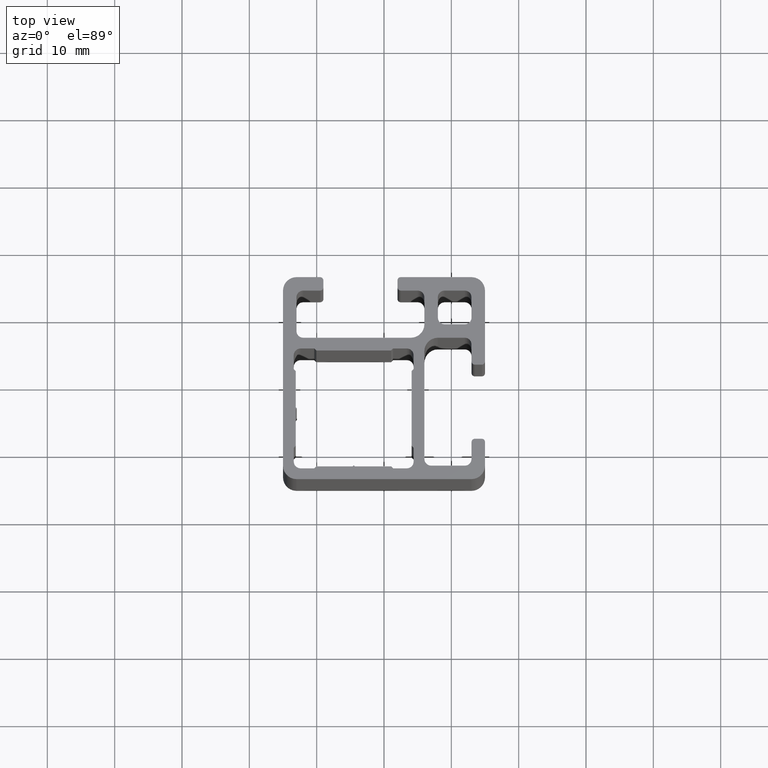
[diagram: clean part render]
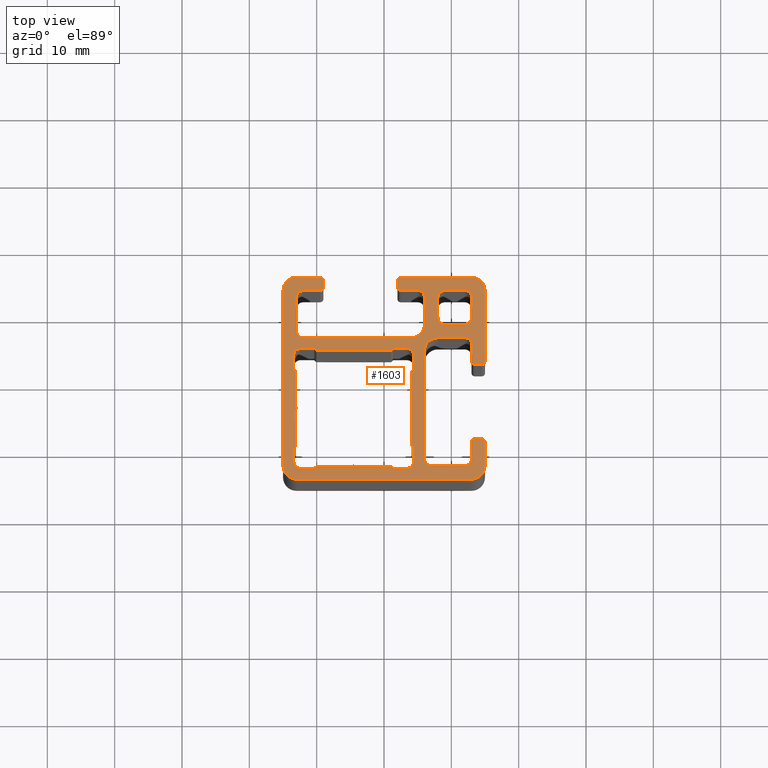
[diagram: same view with one face highlighted and labeled with its STEP entity id]
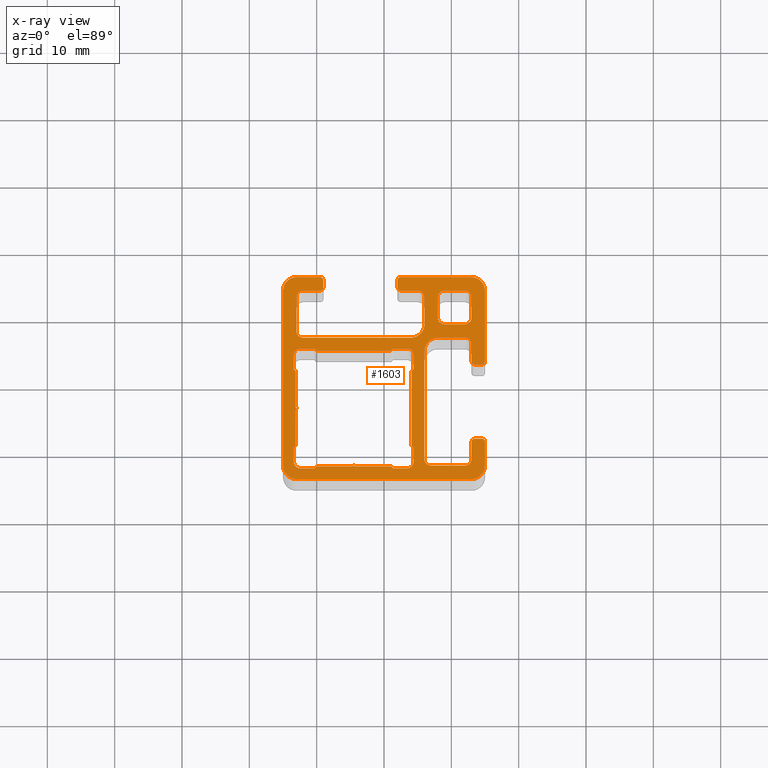
[diagram: x-ray of the same camera — body ghosted, the highlighted face saturated]
A machine part, top view. The second image highlights one B-rep face of the part: STEP entity #1603.
The next image is the same camera in x-ray: the body ghosted, the highlighted face saturated — about 0% of this face is hidden behind the body in this view.
In plain terms, the highlighted planar face has unit normal (0, 0, 1).
Its self-contained STEP definition (entity closure, byte-faithful):
#15=FACE_BOUND('',#222,.T.);
#16=FACE_BOUND('',#223,.T.);
#65=PLANE('',#1733);
#141=FACE_OUTER_BOUND('',#221,.T.);
#221=EDGE_LOOP('',(#1317,#1318,#1319,#1320,#1321,#1322,#1323,#1324,#1325,
#1326,#1327,#1328,#1329,#1330,#1331,#1332,#1333,#1334,#1335,#1336,#1337,
#1338,#1339,#1340,#1341,#1342,#1343,#1344,#1345,#1346,#1347,#1348,#1349,
#1350,#1351,#1352,#1353,#1354,#1355,#1356));
#222=EDGE_LOOP('',(#1357,#1358,#1359,#1360,#1361,#1362,#1363,#1364,#1365,
#1366,#1367,#1368,#1369,#1370,#1371,#1372,#1373,#1374,#1375,#1376,#1377,
#1378,#1379,#1380,#1381,#1382,#1383,#1384,#1385,#1386));
#223=EDGE_LOOP('',(#1387,#1388,#1389,#1390,#1391,#1392,#1393,#1394));
#237=LINE('',#2215,#415);
#241=LINE('',#2227,#419);
#245=LINE('',#2239,#423);
#249=LINE('',#2250,#427);
#251=LINE('',#2255,#429);
#255=LINE('',#2263,#433);
#258=LINE('',#2269,#436);
#261=LINE('',#2275,#439);
#264=LINE('',#2281,#442);
#267=LINE('',#2287,#445);
#271=LINE('',#2299,#449);
#274=LINE('',#2305,#452);
#277=LINE('',#2311,#455);
#280=LINE('',#2317,#458);
#283=LINE('',#2323,#461);
#286=LINE('',#2329,#464);
#289=LINE('',#2335,#467);
#292=LINE('',#2341,#470);
#296=LINE('',#2353,#474);
#299=LINE('',#2359,#477);
#302=LINE('',#2365,#480);
#305=LINE('',#2371,#483);
#308=LINE('',#2377,#486);
#312=LINE('',#2389,#490);
#315=LINE('',#2395,#493);
#318=LINE('',#2401,#496);
#321=LINE('',#2407,#499);
#324=LINE('',#2413,#502);
#328=LINE('',#2425,#506);
#331=LINE('',#2430,#509);
#335=LINE('',#2443,#513);
#339=LINE('',#2455,#517);
#343=LINE('',#2467,#521);
#349=LINE('',#2488,#527);
#353=LINE('',#2500,#531);
#357=LINE('',#2512,#535);
#361=LINE('',#2523,#539);
#363=LINE('',#2528,#541);
#368=LINE('',#2542,#546);
#372=LINE('',#2554,#550);
#376=LINE('',#2566,#554);
#382=LINE('',#2587,#560);
#386=LINE('',#2599,#564);
#390=LINE('',#2611,#568);
#395=LINE('',#2623,#573);
#396=LINE('',#2626,#574);
#399=LINE('',#2633,#577);
#400=LINE('',#2637,#578);
#401=LINE('',#2641,#579);
#402=LINE('',#2644,#580);
#415=VECTOR('',#1763,3.);
#419=VECTOR('',#1775,3.);
#423=VECTOR('',#1787,2.99999999999999);
#427=VECTOR('',#1799,3.);
#429=VECTOR('',#1803,5.39999999999999);
#433=VECTOR('',#1809,0.212132034355957);
#436=VECTOR('',#1814,0.212132034355964);
#439=VECTOR('',#1819,5.40000000000011);
#442=VECTOR('',#1824,0.424264068711855);
#445=VECTOR('',#1829,2.05);
#449=VECTOR('',#1841,2.05);
#452=VECTOR('',#1846,0.42426406871195);
#455=VECTOR('',#1851,5.39999999999999);
#458=VECTOR('',#1856,0.212132034355964);
#461=VECTOR('',#1861,0.212132034355955);
#464=VECTOR('',#1866,5.39999999999998);
#467=VECTOR('',#1871,0.424264068711968);
#470=VECTOR('',#1876,2.05000000000003);
#474=VECTOR('',#1888,2.05);
#477=VECTOR('',#1893,0.424264068711934);
#480=VECTOR('',#1898,11.1);
#483=VECTOR('',#1903,0.424264068711929);
#486=VECTOR('',#1908,2.05);
#490=VECTOR('',#1920,2.05000000000005);
#493=VECTOR('',#1925,0.424264068711922);
#496=VECTOR('',#1930,11.1);
#499=VECTOR('',#1935,0.4242640687119);
#502=VECTOR('',#1940,2.05000000000002);
#506=VECTOR('',#1952,2.04999999999999);
#509=VECTOR('',#1957,0.424264068711928);
#513=VECTOR('',#1969,4.);
#517=VECTOR('',#1981,2.5);
#521=VECTOR('',#1993,1.);
#527=VECTOR('',#2013,0.999999999999999);
#531=VECTOR('',#2025,2.5);
#535=VECTOR('',#2037,5.);
#539=VECTOR('',#2049,16.);
#541=VECTOR('',#2053,16.);
#546=VECTOR('',#2066,4.);
#550=VECTOR('',#2078,2.5);
#554=VECTOR('',#2090,0.999999999999999);
#560=VECTOR('',#2110,0.999999999999999);
#564=VECTOR('',#2122,2.5);
#568=VECTOR('',#2134,5.);
#573=VECTOR('',#2147,10.4999999868977);
#574=VECTOR('',#2150,10.4999999917376);
#577=VECTOR('',#2157,3.49999999152327);
#578=VECTOR('',#2160,25.9999999741351);
#579=VECTOR('',#2163,25.9999999830465);
#580=VECTOR('',#2166,3.49999998706757);
#591=CIRCLE('',#1616,1.);
#593=CIRCLE('',#1620,1.);
#595=CIRCLE('',#1624,1.);
#597=CIRCLE('',#1628,1.);
#599=CIRCLE('',#1638,1.);
#601=CIRCLE('',#1649,1.);
#603=CIRCLE('',#1657,1.);
#605=CIRCLE('',#1665,1.);
#607=CIRCLE('',#1670,2.);
#609=CIRCLE('',#1674,1.);
#611=CIRCLE('',#1678,0.5);
#613=CIRCLE('',#1682,0.5);
#615=CIRCLE('',#1685,0.5);
#617=CIRCLE('',#1689,0.5);
#619=CIRCLE('',#1693,1.);
#621=CIRCLE('',#1697,1.);
#623=CIRCLE('',#1702,2.);
#625=CIRCLE('',#1706,1.);
#627=CIRCLE('',#1710,0.5);
#629=CIRCLE('',#1714,0.5);
#631=CIRCLE('',#1717,0.5);
#633=CIRCLE('',#1721,0.5);
#635=CIRCLE('',#1725,1.);
#637=CIRCLE('',#1729,1.);
#639=CIRCLE('',#1734,2.00000000847673);
#640=CIRCLE('',#1735,2.00000000847673);
#641=CIRCLE('',#1736,2.00000000847673);
#642=CIRCLE('',#1737,2.00000000847673);
#647=VERTEX_POINT('',#2205);
#648=VERTEX_POINT('',#2206);
#651=VERTEX_POINT('',#2214);
#653=VERTEX_POINT('',#2220);
#655=VERTEX_POINT('',#2226);
#657=VERTEX_POINT('',#2232);
#659=VERTEX_POINT('',#2238);
#661=VERTEX_POINT('',#2244);
#663=VERTEX_POINT('',#2253);
#664=VERTEX_POINT('',#2254);
#667=VERTEX_POINT('',#2262);
#669=VERTEX_POINT('',#2268);
#671=VERTEX_POINT('',#2274);
#673=VERTEX_POINT('',#2280);
#675=VERTEX_POINT('',#2286);
#677=VERTEX_POINT('',#2292);
#679=VERTEX_POINT('',#2298);
#681=VERTEX_POINT('',#2304);
#683=VERTEX_POINT('',#2310);
#685=VERTEX_POINT('',#2316);
#687=VERTEX_POINT('',#2322);
#689=VERTEX_POINT('',#2328);
#691=VERTEX_POINT('',#2334);
#693=VERTEX_POINT('',#2340);
#695=VERTEX_POINT('',#2346);
#697=VERTEX_POINT('',#2352);
#699=VERTEX_POINT('',#2358);
#701=VERTEX_POINT('',#2364);
#703=VERTEX_POINT('',#2370);
#705=VERTEX_POINT('',#2376);
#707=VERTEX_POINT('',#2382);
#709=VERTEX_POINT('',#2388);
#711=VERTEX_POINT('',#2394);
#713=VERTEX_POINT('',#2400);
#715=VERTEX_POINT('',#2406);
#717=VERTEX_POINT('',#2412);
#719=VERTEX_POINT('',#2418);
#721=VERTEX_POINT('',#2424);
#723=VERTEX_POINT('',#2433);
#724=VERTEX_POINT('',#2434);
#727=VERTEX_POINT('',#2442);
#729=VERTEX_POINT('',#2448);
#731=VERTEX_POINT('',#2454);
#733=VERTEX_POINT('',#2460);
#735=VERTEX_POINT('',#2466);
#737=VERTEX_POINT('',#2472);
#739=VERTEX_POINT('',#2478);
#740=VERTEX_POINT('',#2479);
#743=VERTEX_POINT('',#2487);
#745=VERTEX_POINT('',#2493);
#747=VERTEX_POINT('',#2499);
#749=VERTEX_POINT('',#2505);
#751=VERTEX_POINT('',#2511);
#753=VERTEX_POINT('',#2517);
#755=VERTEX_POINT('',#2526);
#756=VERTEX_POINT('',#2527);
#759=VERTEX_POINT('',#2535);
#761=VERTEX_POINT('',#2541);
#763=VERTEX_POINT('',#2547);
#765=VERTEX_POINT('',#2553);
#767=VERTEX_POINT('',#2559);
#769=VERTEX_POINT('',#2565);
#771=VERTEX_POINT('',#2571);
#773=VERTEX_POINT('',#2577);
#774=VERTEX_POINT('',#2578);
#777=VERTEX_POINT('',#2586);
#779=VERTEX_POINT('',#2592);
#781=VERTEX_POINT('',#2598);
#783=VERTEX_POINT('',#2604);
#785=VERTEX_POINT('',#2610);
#788=VERTEX_POINT('',#2621);
#789=VERTEX_POINT('',#2625);
#791=VERTEX_POINT('',#2632);
#792=VERTEX_POINT('',#2634);
#793=VERTEX_POINT('',#2636);
#794=VERTEX_POINT('',#2638);
#795=VERTEX_POINT('',#2640);
#796=VERTEX_POINT('',#2642);
#803=EDGE_CURVE('',#647,#648,#591,.T.);
#807=EDGE_CURVE('',#648,#651,#237,.T.);
#810=EDGE_CURVE('',#651,#653,#593,.T.);
#813=EDGE_CURVE('',#653,#655,#241,.T.);
#816=EDGE_CURVE('',#655,#657,#595,.T.);
#819=EDGE_CURVE('',#657,#659,#245,.T.);
#822=EDGE_CURVE('',#659,#661,#597,.T.);
#825=EDGE_CURVE('',#661,#647,#249,.T.);
#827=EDGE_CURVE('',#663,#664,#251,.T.);
#831=EDGE_CURVE('',#667,#663,#255,.T.);
#834=EDGE_CURVE('',#669,#667,#258,.T.);
#837=EDGE_CURVE('',#671,#669,#261,.T.);
#840=EDGE_CURVE('',#673,#671,#264,.T.);
#843=EDGE_CURVE('',#675,#673,#267,.T.);
#846=EDGE_CURVE('',#677,#675,#599,.T.);
#849=EDGE_CURVE('',#679,#677,#271,.T.);
#852=EDGE_CURVE('',#681,#679,#274,.T.);
#855=EDGE_CURVE('',#683,#681,#277,.T.);
#858=EDGE_CURVE('',#685,#683,#280,.T.);
#861=EDGE_CURVE('',#687,#685,#283,.T.);
#864=EDGE_CURVE('',#689,#687,#286,.T.);
#867=EDGE_CURVE('',#691,#689,#289,.T.);
#870=EDGE_CURVE('',#693,#691,#292,.T.);
#873=EDGE_CURVE('',#695,#693,#601,.T.);
#876=EDGE_CURVE('',#697,#695,#296,.T.);
#879=EDGE_CURVE('',#699,#697,#299,.T.);
#882=EDGE_CURVE('',#701,#699,#302,.T.);
#885=EDGE_CURVE('',#703,#701,#305,.T.);
#888=EDGE_CURVE('',#705,#703,#308,.T.);
#891=EDGE_CURVE('',#707,#705,#603,.T.);
#894=EDGE_CURVE('',#709,#707,#312,.T.);
#897=EDGE_CURVE('',#711,#709,#315,.T.);
#900=EDGE_CURVE('',#713,#711,#318,.T.);
#903=EDGE_CURVE('',#715,#713,#321,.T.);
#906=EDGE_CURVE('',#717,#715,#324,.T.);
#909=EDGE_CURVE('',#719,#717,#605,.T.);
#912=EDGE_CURVE('',#721,#719,#328,.T.);
#915=EDGE_CURVE('',#664,#721,#331,.T.);
#917=EDGE_CURVE('',#723,#724,#607,.T.);
#921=EDGE_CURVE('',#724,#727,#335,.T.);
#924=EDGE_CURVE('',#727,#729,#609,.T.);
#927=EDGE_CURVE('',#729,#731,#339,.T.);
#930=EDGE_CURVE('',#731,#733,#611,.T.);
#933=EDGE_CURVE('',#733,#735,#343,.T.);
#936=EDGE_CURVE('',#735,#737,#613,.T.);
#939=EDGE_CURVE('',#739,#740,#615,.T.);
#943=EDGE_CURVE('',#740,#743,#349,.T.);
#946=EDGE_CURVE('',#743,#745,#617,.T.);
#949=EDGE_CURVE('',#745,#747,#353,.T.);
#952=EDGE_CURVE('',#747,#749,#619,.T.);
#955=EDGE_CURVE('',#749,#751,#357,.T.);
#958=EDGE_CURVE('',#751,#753,#621,.T.);
#961=EDGE_CURVE('',#753,#723,#361,.T.);
#963=EDGE_CURVE('',#755,#756,#363,.T.);
#967=EDGE_CURVE('',#759,#755,#623,.T.);
#970=EDGE_CURVE('',#761,#759,#368,.T.);
#973=EDGE_CURVE('',#763,#761,#625,.T.);
#976=EDGE_CURVE('',#765,#763,#372,.T.);
#979=EDGE_CURVE('',#767,#765,#627,.T.);
#982=EDGE_CURVE('',#769,#767,#376,.T.);
#985=EDGE_CURVE('',#771,#769,#629,.T.);
#988=EDGE_CURVE('',#773,#774,#631,.T.);
#992=EDGE_CURVE('',#777,#773,#382,.T.);
#995=EDGE_CURVE('',#779,#777,#633,.T.);
#998=EDGE_CURVE('',#781,#779,#386,.T.);
#1001=EDGE_CURVE('',#783,#781,#635,.T.);
#1004=EDGE_CURVE('',#785,#783,#390,.T.);
#1007=EDGE_CURVE('',#756,#785,#637,.T.);
#1011=EDGE_CURVE('',#788,#737,#395,.T.);
#1012=EDGE_CURVE('',#771,#789,#396,.T.);
#1015=EDGE_CURVE('',#789,#788,#639,.T.);
#1016=EDGE_CURVE('',#791,#774,#399,.T.);
#1017=EDGE_CURVE('',#792,#791,#640,.T.);
#1018=EDGE_CURVE('',#793,#792,#400,.T.);
#1019=EDGE_CURVE('',#794,#793,#641,.T.);
#1020=EDGE_CURVE('',#795,#794,#401,.T.);
#1021=EDGE_CURVE('',#796,#795,#642,.T.);
#1022=EDGE_CURVE('',#739,#796,#402,.T.);
#1317=ORIENTED_EDGE('',*,*,#939,.T.);
#1318=ORIENTED_EDGE('',*,*,#943,.T.);
#1319=ORIENTED_EDGE('',*,*,#946,.T.);
#1320=ORIENTED_EDGE('',*,*,#949,.T.);
#1321=ORIENTED_EDGE('',*,*,#952,.T.);
#1322=ORIENTED_EDGE('',*,*,#955,.T.);
#1323=ORIENTED_EDGE('',*,*,#958,.T.);
#1324=ORIENTED_EDGE('',*,*,#961,.T.);
#1325=ORIENTED_EDGE('',*,*,#917,.T.);
#1326=ORIENTED_EDGE('',*,*,#921,.T.);
#1327=ORIENTED_EDGE('',*,*,#924,.T.);
#1328=ORIENTED_EDGE('',*,*,#927,.T.);
#1329=ORIENTED_EDGE('',*,*,#930,.T.);
#1330=ORIENTED_EDGE('',*,*,#933,.T.);
#1331=ORIENTED_EDGE('',*,*,#936,.T.);
#1332=ORIENTED_EDGE('',*,*,#1011,.F.);
#1333=ORIENTED_EDGE('',*,*,#1015,.F.);
#1334=ORIENTED_EDGE('',*,*,#1012,.F.);
#1335=ORIENTED_EDGE('',*,*,#985,.T.);
#1336=ORIENTED_EDGE('',*,*,#982,.T.);
#1337=ORIENTED_EDGE('',*,*,#979,.T.);
#1338=ORIENTED_EDGE('',*,*,#976,.T.);
#1339=ORIENTED_EDGE('',*,*,#973,.T.);
#1340=ORIENTED_EDGE('',*,*,#970,.T.);
#1341=ORIENTED_EDGE('',*,*,#967,.T.);
#1342=ORIENTED_EDGE('',*,*,#963,.T.);
#1343=ORIENTED_EDGE('',*,*,#1007,.T.);
#1344=ORIENTED_EDGE('',*,*,#1004,.T.);
#1345=ORIENTED_EDGE('',*,*,#1001,.T.);
#1346=ORIENTED_EDGE('',*,*,#998,.T.);
#1347=ORIENTED_EDGE('',*,*,#995,.T.);
#1348=ORIENTED_EDGE('',*,*,#992,.T.);
#1349=ORIENTED_EDGE('',*,*,#988,.T.);
#1350=ORIENTED_EDGE('',*,*,#1016,.F.);
#1351=ORIENTED_EDGE('',*,*,#1017,.F.);
#1352=ORIENTED_EDGE('',*,*,#1018,.F.);
#1353=ORIENTED_EDGE('',*,*,#1019,.F.);
#1354=ORIENTED_EDGE('',*,*,#1020,.F.);
#1355=ORIENTED_EDGE('',*,*,#1021,.F.);
#1356=ORIENTED_EDGE('',*,*,#1022,.F.);
#1357=ORIENTED_EDGE('',*,*,#827,.T.);
#1358=ORIENTED_EDGE('',*,*,#915,.T.);
#1359=ORIENTED_EDGE('',*,*,#912,.T.);
#1360=ORIENTED_EDGE('',*,*,#909,.T.);
#1361=ORIENTED_EDGE('',*,*,#906,.T.);
#1362=ORIENTED_EDGE('',*,*,#903,.T.);
#1363=ORIENTED_EDGE('',*,*,#900,.T.);
#1364=ORIENTED_EDGE('',*,*,#897,.T.);
#1365=ORIENTED_EDGE('',*,*,#894,.T.);
#1366=ORIENTED_EDGE('',*,*,#891,.T.);
#1367=ORIENTED_EDGE('',*,*,#888,.T.);
#1368=ORIENTED_EDGE('',*,*,#885,.T.);
#1369=ORIENTED_EDGE('',*,*,#882,.T.);
#1370=ORIENTED_EDGE('',*,*,#879,.T.);
#1371=ORIENTED_EDGE('',*,*,#876,.T.);
#1372=ORIENTED_EDGE('',*,*,#873,.T.);
#1373=ORIENTED_EDGE('',*,*,#870,.T.);
#1374=ORIENTED_EDGE('',*,*,#867,.T.);
#1375=ORIENTED_EDGE('',*,*,#864,.T.);
#1376=ORIENTED_EDGE('',*,*,#861,.T.);
#1377=ORIENTED_EDGE('',*,*,#858,.T.);
#1378=ORIENTED_EDGE('',*,*,#855,.T.);
#1379=ORIENTED_EDGE('',*,*,#852,.T.);
#1380=ORIENTED_EDGE('',*,*,#849,.T.);
#1381=ORIENTED_EDGE('',*,*,#846,.T.);
#1382=ORIENTED_EDGE('',*,*,#843,.T.);
#1383=ORIENTED_EDGE('',*,*,#840,.T.);
#1384=ORIENTED_EDGE('',*,*,#837,.T.);
#1385=ORIENTED_EDGE('',*,*,#834,.T.);
#1386=ORIENTED_EDGE('',*,*,#831,.T.);
#1387=ORIENTED_EDGE('',*,*,#803,.T.);
#1388=ORIENTED_EDGE('',*,*,#807,.T.);
#1389=ORIENTED_EDGE('',*,*,#810,.T.);
#1390=ORIENTED_EDGE('',*,*,#813,.T.);
#1391=ORIENTED_EDGE('',*,*,#816,.T.);
#1392=ORIENTED_EDGE('',*,*,#819,.T.);
#1393=ORIENTED_EDGE('',*,*,#822,.T.);
#1394=ORIENTED_EDGE('',*,*,#825,.T.);
#1603=ADVANCED_FACE('',(#141,#15,#16),#65,.T.);
#1616=AXIS2_PLACEMENT_3D('',#2207,#1755,#1756);
#1620=AXIS2_PLACEMENT_3D('',#2221,#1768,#1769);
#1624=AXIS2_PLACEMENT_3D('',#2233,#1780,#1781);
#1628=AXIS2_PLACEMENT_3D('',#2245,#1792,#1793);
#1638=AXIS2_PLACEMENT_3D('',#2293,#1834,#1835);
#1649=AXIS2_PLACEMENT_3D('',#2347,#1881,#1882);
#1657=AXIS2_PLACEMENT_3D('',#2383,#1913,#1914);
#1665=AXIS2_PLACEMENT_3D('',#2419,#1945,#1946);
#1670=AXIS2_PLACEMENT_3D('',#2435,#1961,#1962);
#1674=AXIS2_PLACEMENT_3D('',#2449,#1974,#1975);
#1678=AXIS2_PLACEMENT_3D('',#2461,#1986,#1987);
#1682=AXIS2_PLACEMENT_3D('',#2473,#1998,#1999);
#1685=AXIS2_PLACEMENT_3D('',#2480,#2005,#2006);
#1689=AXIS2_PLACEMENT_3D('',#2494,#2018,#2019);
#1693=AXIS2_PLACEMENT_3D('',#2506,#2030,#2031);
#1697=AXIS2_PLACEMENT_3D('',#2518,#2042,#2043);
#1702=AXIS2_PLACEMENT_3D('',#2536,#2059,#2060);
#1706=AXIS2_PLACEMENT_3D('',#2548,#2071,#2072);
#1710=AXIS2_PLACEMENT_3D('',#2560,#2083,#2084);
#1714=AXIS2_PLACEMENT_3D('',#2572,#2095,#2096);
#1717=AXIS2_PLACEMENT_3D('',#2579,#2102,#2103);
#1721=AXIS2_PLACEMENT_3D('',#2593,#2115,#2116);
#1725=AXIS2_PLACEMENT_3D('',#2605,#2127,#2128);
#1729=AXIS2_PLACEMENT_3D('',#2616,#2139,#2140);
#1733=AXIS2_PLACEMENT_3D('',#2630,#2153,#2154);
#1734=AXIS2_PLACEMENT_3D('',#2631,#2155,#2156);
#1735=AXIS2_PLACEMENT_3D('',#2635,#2158,#2159);
#1736=AXIS2_PLACEMENT_3D('',#2639,#2161,#2162);
#1737=AXIS2_PLACEMENT_3D('',#2643,#2164,#2165);
#1755=DIRECTION('center_axis',(0.,0.,-1.));
#1756=DIRECTION('ref_axis',(0.,1.,0.));
#1763=DIRECTION('',(-1.,-3.70074341541719E-16,0.));
#1768=DIRECTION('center_axis',(0.,0.,-1.));
#1769=DIRECTION('ref_axis',(1.,0.,0.));
#1775=DIRECTION('',(3.70074341541719E-16,1.,0.));
#1780=DIRECTION('center_axis',(0.,0.,-1.));
#1781=DIRECTION('ref_axis',(0.,-1.,0.));
#1787=DIRECTION('',(1.,2.22044604925032E-15,0.));
#1792=DIRECTION('center_axis',(0.,0.,-1.));
#1793=DIRECTION('ref_axis',(-1.,0.,0.));
#1799=DIRECTION('',(2.22044604925031E-15,-1.,0.));
#1803=DIRECTION('',(-8.22387425648266E-16,1.,0.));
#1809=DIRECTION('',(-0.707106781186576,0.707106781186519,0.));
#1814=DIRECTION('',(0.707106781186541,0.707106781186554,0.));
#1819=DIRECTION('',(1.23358113847237E-15,1.,0.));
#1824=DIRECTION('',(0.707106781186649,0.707106781186445,0.));
#1829=DIRECTION('',(0.,1.,0.));
#1834=DIRECTION('center_axis',(0.,0.,-1.));
#1835=DIRECTION('ref_axis',(1.,0.,0.));
#1841=DIRECTION('',(-1.,1.08314441426845E-15,0.));
#1846=DIRECTION('',(-0.707106781186532,-0.707106781186563,0.));
#1851=DIRECTION('',(-1.,4.11193712824133E-15,0.));
#1856=DIRECTION('',(-0.707106781186562,-0.707106781186533,0.));
#1861=DIRECTION('',(-0.707106781186531,0.707106781186565,0.));
#1866=DIRECTION('',(-1.,-4.93432455388961E-15,0.));
#1871=DIRECTION('',(-0.707106781186547,0.707106781186548,0.));
#1876=DIRECTION('',(-1.,-1.08314441426843E-15,0.));
#1881=DIRECTION('center_axis',(0.,0.,-1.));
#1882=DIRECTION('ref_axis',(3.33066907387547E-15,1.,0.));
#1888=DIRECTION('',(1.19145885569529E-14,-1.,0.));
#1893=DIRECTION('',(0.70710678118654,-0.707106781186555,0.));
#1898=DIRECTION('',(-1.00020092308573E-16,-1.,0.));
#1903=DIRECTION('',(-0.707106781186547,-0.707106781186548,0.));
#1908=DIRECTION('',(-1.27269468676542E-14,-1.,0.));
#1913=DIRECTION('center_axis',(0.,0.,-1.));
#1914=DIRECTION('ref_axis',(-1.,0.,0.));
#1920=DIRECTION('',(1.,6.49886648561051E-15,0.));
#1925=DIRECTION('',(0.707106781186545,0.70710678118655,0.));
#1930=DIRECTION('',(1.,-1.00020092308573E-16,0.));
#1935=DIRECTION('',(0.707106781186515,-0.70710678118658,0.));
#1940=DIRECTION('',(1.,-2.9786471392382E-15,0.));
#1945=DIRECTION('center_axis',(0.,0.,-1.));
#1946=DIRECTION('ref_axis',(0.,-1.,0.));
#1952=DIRECTION('',(-1.08314441426845E-15,1.,0.));
#1957=DIRECTION('',(-0.707106781186527,0.707106781186568,0.));
#1961=DIRECTION('center_axis',(0.,0.,-1.));
#1962=DIRECTION('ref_axis',(0.,1.,0.));
#1969=DIRECTION('',(1.,0.,0.));
#1974=DIRECTION('center_axis',(0.,0.,-1.));
#1975=DIRECTION('ref_axis',(1.,0.,0.));
#1981=DIRECTION('',(0.,-1.,0.));
#1986=DIRECTION('center_axis',(0.,0.,1.));
#1987=DIRECTION('ref_axis',(1.,0.,0.));
#1993=DIRECTION('',(1.,5.55111512312577E-16,0.));
#1998=DIRECTION('center_axis',(0.,0.,1.));
#1999=DIRECTION('ref_axis',(0.,1.,0.));
#2005=DIRECTION('center_axis',(0.,0.,1.));
#2006=DIRECTION('ref_axis',(-1.,0.,0.));
#2013=DIRECTION('',(-1.,0.,0.));
#2018=DIRECTION('center_axis',(0.,0.,1.));
#2019=DIRECTION('ref_axis',(0.,-1.,0.));
#2025=DIRECTION('',(1.77635683940025E-15,-1.,0.));
#2030=DIRECTION('center_axis',(0.,0.,-1.));
#2031=DIRECTION('ref_axis',(0.,-1.,0.));
#2037=DIRECTION('',(-1.,0.,0.));
#2042=DIRECTION('center_axis',(0.,0.,-1.));
#2043=DIRECTION('ref_axis',(-1.,-2.22044604925031E-15,0.));
#2049=DIRECTION('',(6.93889390390723E-17,1.,0.));
#2053=DIRECTION('',(-1.,-2.77555756156289E-16,0.));
#2059=DIRECTION('center_axis',(0.,0.,-1.));
#2060=DIRECTION('ref_axis',(2.77555756156289E-16,-1.,0.));
#2066=DIRECTION('',(2.77555756156289E-16,-1.,0.));
#2071=DIRECTION('center_axis',(0.,0.,-1.));
#2072=DIRECTION('ref_axis',(1.,0.,0.));
#2078=DIRECTION('',(1.,1.77635683940025E-15,0.));
#2083=DIRECTION('center_axis',(0.,0.,1.));
#2084=DIRECTION('ref_axis',(1.,0.,0.));
#2090=DIRECTION('',(-5.55111512312579E-16,-1.,0.));
#2095=DIRECTION('center_axis',(0.,0.,1.));
#2096=DIRECTION('ref_axis',(0.,-1.,0.));
#2102=DIRECTION('center_axis',(0.,0.,1.));
#2103=DIRECTION('ref_axis',(-1.,0.,0.));
#2110=DIRECTION('',(-1.11022302462516E-15,1.,0.));
#2115=DIRECTION('center_axis',(0.,0.,1.));
#2116=DIRECTION('ref_axis',(0.,1.,0.));
#2122=DIRECTION('',(1.,-1.77635683940025E-15,0.));
#2127=DIRECTION('center_axis',(0.,0.,-1.));
#2128=DIRECTION('ref_axis',(0.,1.,0.));
#2134=DIRECTION('',(-4.44089209850062E-16,1.,0.));
#2139=DIRECTION('center_axis',(0.,0.,-1.));
#2140=DIRECTION('ref_axis',(-1.,0.,0.));
#2147=DIRECTION('',(2.97539770897479E-11,-1.,0.));
#2150=DIRECTION('',(1.,-1.51799940237017E-11,0.));
#2153=DIRECTION('center_axis',(0.,0.,1.));
#2154=DIRECTION('ref_axis',(1.,0.,0.));
#2155=DIRECTION('center_axis',(0.,0.,-1.));
#2156=DIRECTION('ref_axis',(-1.,3.84254848573491E-10,0.));
#2157=DIRECTION('',(1.,-1.51799940237017E-11,0.));
#2158=DIRECTION('center_axis',(0.,0.,-1.));
#2159=DIRECTION('ref_axis',(0.,-1.,0.));
#2160=DIRECTION('',(0.,1.,0.));
#2161=DIRECTION('center_axis',(0.,0.,-1.));
#2162=DIRECTION('ref_axis',(1.,0.,0.));
#2163=DIRECTION('',(-1.,0.,0.));
#2164=DIRECTION('center_axis',(0.,0.,-1.));
#2165=DIRECTION('ref_axis',(0.,1.,0.));
#2166=DIRECTION('',(2.97539770897479E-11,-1.,0.));
#2205=CARTESIAN_POINT('',(13.,9.,100.));
#2206=CARTESIAN_POINT('',(12.,8.,100.));
#2207=CARTESIAN_POINT('Origin',(12.,9.,100.));
#2214=CARTESIAN_POINT('',(9.,8.,100.));
#2215=CARTESIAN_POINT('',(4.5,8.,100.));
#2220=CARTESIAN_POINT('',(8.,9.,100.));
#2221=CARTESIAN_POINT('Origin',(9.,9.,100.));
#2226=CARTESIAN_POINT('',(8.,12.,100.));
#2227=CARTESIAN_POINT('',(8.,6.00000000019473,100.));
#2232=CARTESIAN_POINT('',(9.,13.,100.));
#2233=CARTESIAN_POINT('Origin',(9.,12.,100.));
#2238=CARTESIAN_POINT('',(12.,13.,100.));
#2239=CARTESIAN_POINT('',(5.99999999999998,13.,100.));
#2244=CARTESIAN_POINT('',(13.,12.,100.));
#2245=CARTESIAN_POINT('Origin',(12.,12.,100.));
#2250=CARTESIAN_POINT('',(13.,4.50000000019475,100.));
#2253=CARTESIAN_POINT('',(-13.1,-4.34999999999999,100.));
#2254=CARTESIAN_POINT('',(-13.1,1.05,100.));
#2255=CARTESIAN_POINT('',(-13.1,0.525000000194726,100.));
#2262=CARTESIAN_POINT('',(-12.95,-4.49999999999998,100.));
#2263=CARTESIAN_POINT('',(-10.9125000000971,-6.53749999990272,100.));
#2268=CARTESIAN_POINT('',(-13.1,-4.64999999999998,100.));
#2269=CARTESIAN_POINT('',(-8.5874999999027,-0.137499999902597,100.));
#2274=CARTESIAN_POINT('',(-13.1,-10.0500000000001,100.));
#2275=CARTESIAN_POINT('',(-13.1,-2.32499999980525,100.));
#2280=CARTESIAN_POINT('',(-13.4,-10.35,100.));
#2281=CARTESIAN_POINT('',(-7.31249999990167,-4.26249999990343,100.));
#2286=CARTESIAN_POINT('',(-13.4,-12.4,100.));
#2287=CARTESIAN_POINT('',(-13.4,-5.17499999980527,100.));
#2292=CARTESIAN_POINT('',(-12.4,-13.4,100.));
#2293=CARTESIAN_POINT('Origin',(-12.4,-12.4,100.));
#2298=CARTESIAN_POINT('',(-10.35,-13.4,100.));
#2299=CARTESIAN_POINT('',(-6.20000000000001,-13.4,100.));
#2304=CARTESIAN_POINT('',(-10.05,-13.1,100.));
#2305=CARTESIAN_POINT('',(-4.41249999990275,-7.46249999990249,100.));
#2310=CARTESIAN_POINT('',(-4.65,-13.1,100.));
#2311=CARTESIAN_POINT('',(-5.02500000000002,-13.1,100.));
#2316=CARTESIAN_POINT('',(-4.49999999999999,-12.95,100.));
#2317=CARTESIAN_POINT('',(-0.212499999902583,-8.66249999990277,100.));
#2322=CARTESIAN_POINT('',(-4.35,-13.1,100.));
#2323=CARTESIAN_POINT('',(-6.61250000009742,-10.8374999999025,100.));
#2328=CARTESIAN_POINT('',(1.04999999999997,-13.1,100.));
#2329=CARTESIAN_POINT('',(-2.17499999999997,-13.1,100.));
#2334=CARTESIAN_POINT('',(1.35,-13.4,100.));
#2335=CARTESIAN_POINT('',(-2.48750000009738,-9.56249999990261,100.));
#2340=CARTESIAN_POINT('',(3.40000000000003,-13.4,100.));
#2341=CARTESIAN_POINT('',(0.675000000000006,-13.4,100.));
#2346=CARTESIAN_POINT('',(4.40000000000002,-12.4,100.));
#2347=CARTESIAN_POINT('Origin',(3.40000000000003,-12.4,100.));
#2352=CARTESIAN_POINT('',(4.4,-10.35,100.));
#2353=CARTESIAN_POINT('',(4.39999999999995,-6.19999999980524,100.));
#2358=CARTESIAN_POINT('',(4.1,-10.05,100.));
#2359=CARTESIAN_POINT('',(0.712499999902654,-6.66249999990258,100.));
#2364=CARTESIAN_POINT('',(4.1,1.05000000000001,100.));
#2365=CARTESIAN_POINT('',(4.1,-5.02499999980527,100.));
#2370=CARTESIAN_POINT('',(4.4,1.35000000000001,100.));
#2371=CARTESIAN_POINT('',(2.81250000009737,-0.237499999902629,100.));
#2376=CARTESIAN_POINT('',(4.40000000000003,3.40000000000001,100.));
#2377=CARTESIAN_POINT('',(4.39999999999999,0.675000000194709,100.));
#2382=CARTESIAN_POINT('',(3.40000000000003,4.40000000000001,100.));
#2383=CARTESIAN_POINT('Origin',(3.40000000000003,3.40000000000001,100.));
#2388=CARTESIAN_POINT('',(1.34999999999998,4.39999999999999,100.));
#2389=CARTESIAN_POINT('',(1.7,4.4,100.));
#2394=CARTESIAN_POINT('',(1.04999999999999,4.1,100.));
#2395=CARTESIAN_POINT('',(-0.0874999999026438,2.96250000009736,100.));
#2400=CARTESIAN_POINT('',(-10.05,4.1,100.));
#2401=CARTESIAN_POINT('',(0.524999999999993,4.1,100.));
#2406=CARTESIAN_POINT('',(-10.35,4.39999999999999,100.));
#2407=CARTESIAN_POINT('',(-6.51250000009761,0.562500000097265,100.));
#2412=CARTESIAN_POINT('',(-12.4,4.4,100.));
#2413=CARTESIAN_POINT('',(-5.17499999999998,4.39999999999998,100.));
#2418=CARTESIAN_POINT('',(-13.4,3.4,100.));
#2419=CARTESIAN_POINT('Origin',(-12.4,3.4,100.));
#2424=CARTESIAN_POINT('',(-13.4,1.35000000000001,100.));
#2425=CARTESIAN_POINT('',(-13.4,1.70000000019472,100.));
#2430=CARTESIAN_POINT('',(-9.71250000009756,-2.33749999990265,100.));
#2433=CARTESIAN_POINT('',(6.,4.,100.));
#2434=CARTESIAN_POINT('',(8.,6.,100.));
#2435=CARTESIAN_POINT('Origin',(8.,4.,100.));
#2442=CARTESIAN_POINT('',(12.,6.,100.));
#2443=CARTESIAN_POINT('',(6.,6.,100.));
#2448=CARTESIAN_POINT('',(13.,5.,100.));
#2449=CARTESIAN_POINT('Origin',(12.,5.,100.));
#2454=CARTESIAN_POINT('',(13.,2.5,100.));
#2455=CARTESIAN_POINT('',(13.,1.25000000019473,100.));
#2460=CARTESIAN_POINT('',(13.5,2.,100.));
#2461=CARTESIAN_POINT('Origin',(13.5,2.5,100.));
#2466=CARTESIAN_POINT('',(14.5,2.,100.));
#2467=CARTESIAN_POINT('',(7.25,2.,100.));
#2472=CARTESIAN_POINT('',(15.,2.5,100.));
#2473=CARTESIAN_POINT('Origin',(14.5,2.5,100.));
#2478=CARTESIAN_POINT('',(15.,-9.5,100.));
#2479=CARTESIAN_POINT('',(14.5,-9.,100.));
#2480=CARTESIAN_POINT('Origin',(14.5,-9.5,100.));
#2487=CARTESIAN_POINT('',(13.5,-9.,100.));
#2488=CARTESIAN_POINT('',(6.75,-9.,100.));
#2493=CARTESIAN_POINT('',(13.,-9.5,100.));
#2494=CARTESIAN_POINT('Origin',(13.5,-9.5,100.));
#2499=CARTESIAN_POINT('',(13.,-12.,100.));
#2500=CARTESIAN_POINT('',(13.,-5.99999999980525,100.));
#2505=CARTESIAN_POINT('',(12.,-13.,100.));
#2506=CARTESIAN_POINT('Origin',(12.,-12.,100.));
#2511=CARTESIAN_POINT('',(7.,-13.,100.));
#2512=CARTESIAN_POINT('',(3.5,-13.,100.));
#2517=CARTESIAN_POINT('',(6.,-12.,100.));
#2518=CARTESIAN_POINT('Origin',(7.,-12.,100.));
#2523=CARTESIAN_POINT('',(6.,2.00000000019473,100.));
#2526=CARTESIAN_POINT('',(4.,6.00000000000001,100.));
#2527=CARTESIAN_POINT('',(-12.,6.,100.));
#2528=CARTESIAN_POINT('',(-6.,6.00000000000001,100.));
#2535=CARTESIAN_POINT('',(6.,8.00000000000001,100.));
#2536=CARTESIAN_POINT('Origin',(4.,8.00000000000001,100.));
#2541=CARTESIAN_POINT('',(6.,12.,100.));
#2542=CARTESIAN_POINT('',(6.,4.00000000019474,100.));
#2547=CARTESIAN_POINT('',(5.,13.,100.));
#2548=CARTESIAN_POINT('Origin',(5.,12.,100.));
#2553=CARTESIAN_POINT('',(2.5,13.,100.));
#2554=CARTESIAN_POINT('',(2.49999999999999,13.,100.));
#2559=CARTESIAN_POINT('',(2.,13.5,100.));
#2560=CARTESIAN_POINT('Origin',(2.5,13.5,100.));
#2565=CARTESIAN_POINT('',(2.,14.5,100.));
#2566=CARTESIAN_POINT('',(2.,6.75000000019473,100.));
#2571=CARTESIAN_POINT('',(2.5,15.,100.));
#2572=CARTESIAN_POINT('Origin',(2.5,14.5,100.));
#2577=CARTESIAN_POINT('',(-9.,14.5,100.));
#2578=CARTESIAN_POINT('',(-9.5,15.,100.));
#2579=CARTESIAN_POINT('Origin',(-9.5,14.5,100.));
#2586=CARTESIAN_POINT('',(-9.,13.5,100.));
#2587=CARTESIAN_POINT('',(-8.99999999999999,7.25000000019473,100.));
#2592=CARTESIAN_POINT('',(-9.5,13.,100.));
#2593=CARTESIAN_POINT('Origin',(-9.5,13.5,100.));
#2598=CARTESIAN_POINT('',(-12.,13.,100.));
#2599=CARTESIAN_POINT('',(-4.74999999999999,13.,100.));
#2604=CARTESIAN_POINT('',(-13.,12.,100.));
#2605=CARTESIAN_POINT('Origin',(-12.,12.,100.));
#2610=CARTESIAN_POINT('',(-13.,7.,100.));
#2611=CARTESIAN_POINT('',(-13.,6.00000000019473,100.));
#2616=CARTESIAN_POINT('Origin',(-12.,7.,100.));
#2621=CARTESIAN_POINT('',(14.9999999992264,12.9999999868977,100.));
#2623=CARTESIAN_POINT('',(14.9999999998066,-6.4999999931159,100.));
#2625=CARTESIAN_POINT('',(12.9999999917377,14.9999999959286,100.));
#2626=CARTESIAN_POINT('',(6.49999999598268,14.9999999960272,100.));
#2630=CARTESIAN_POINT('Origin',(0.,3.89466237038505E-10,100.));
#2631=CARTESIAN_POINT('Origin',(12.9999999909641,12.9999999876662,100.));
#2632=CARTESIAN_POINT('',(-12.9999999915233,14.9999999963232,100.));
#2633=CARTESIAN_POINT('',(6.49999999598268,14.9999999960272,100.));
#2634=CARTESIAN_POINT('',(-15.,12.9999999870676,100.));
#2635=CARTESIAN_POINT('Origin',(-12.9999999915233,12.9999999878465,100.));
#2636=CARTESIAN_POINT('',(-15.,-12.9999999870676,100.));
#2637=CARTESIAN_POINT('',(-15.,6.49999999372852,100.));
#2638=CARTESIAN_POINT('',(-12.9999999915233,-14.9999999955443,100.));
#2639=CARTESIAN_POINT('Origin',(-12.9999999915233,-12.9999999870676,100.));
#2640=CARTESIAN_POINT('',(12.9999999915233,-14.9999999955443,100.));
#2641=CARTESIAN_POINT('',(-6.49999999576163,-14.9999999955443,100.));
#2642=CARTESIAN_POINT('',(15.,-12.9999999870676,100.));
#2643=CARTESIAN_POINT('Origin',(12.9999999915233,-12.9999999870676,100.));
#2644=CARTESIAN_POINT('',(14.9999999998066,-6.4999999931159,100.));